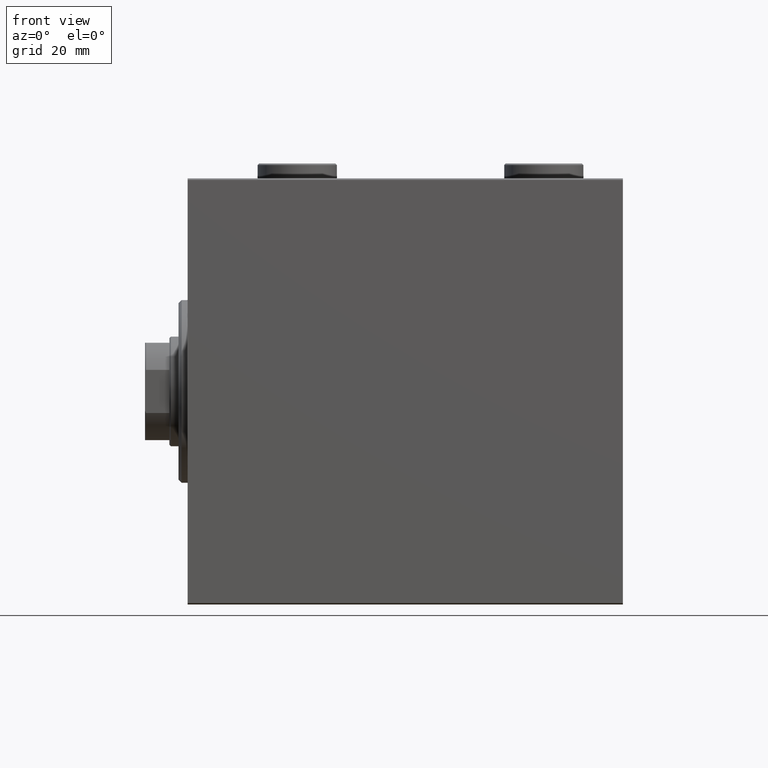
[diagram: clean part render]
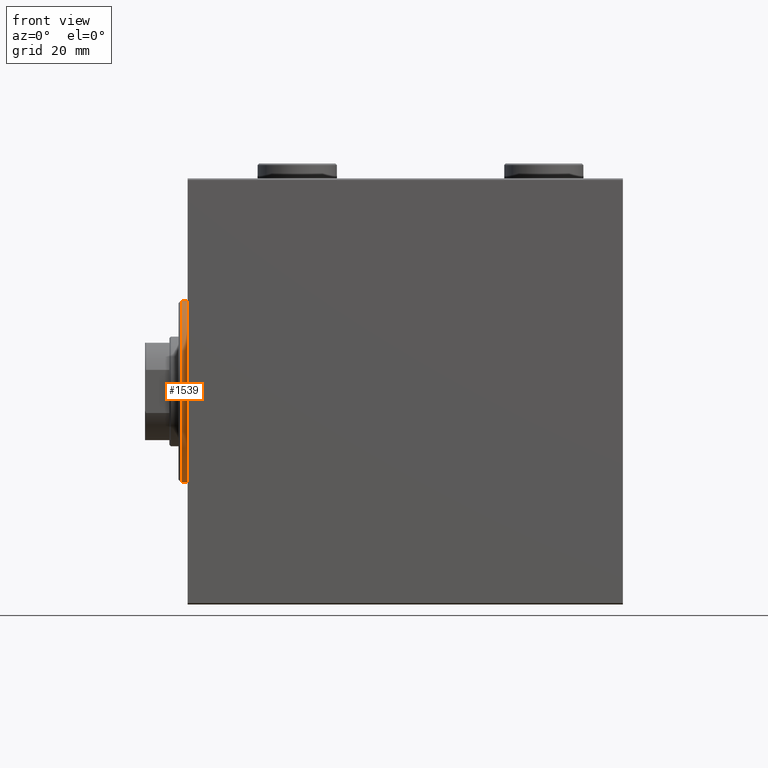
[diagram: same view with one face highlighted and labeled with its STEP entity id]
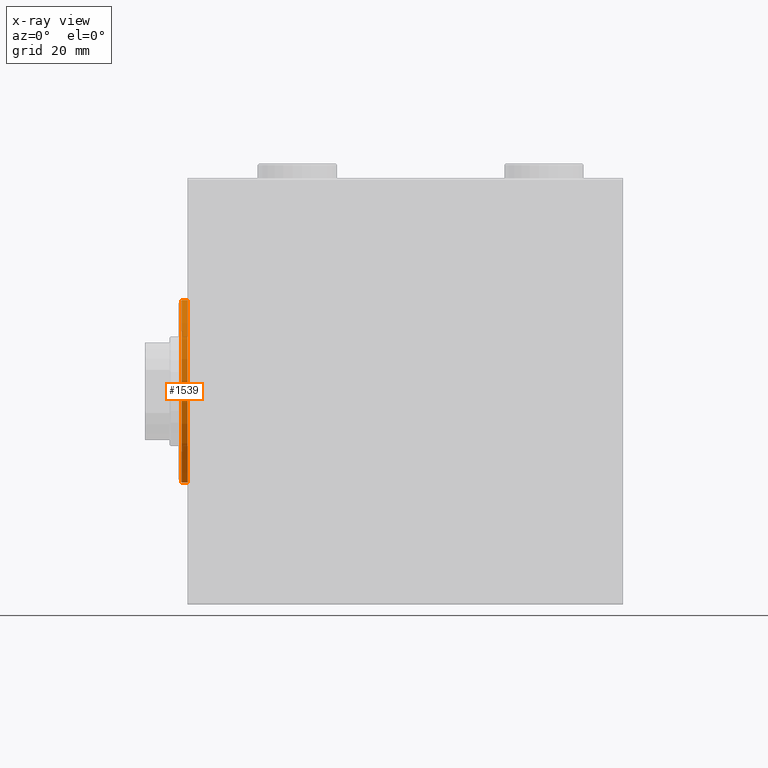
[diagram: x-ray of the same camera — body ghosted, the highlighted face saturated]
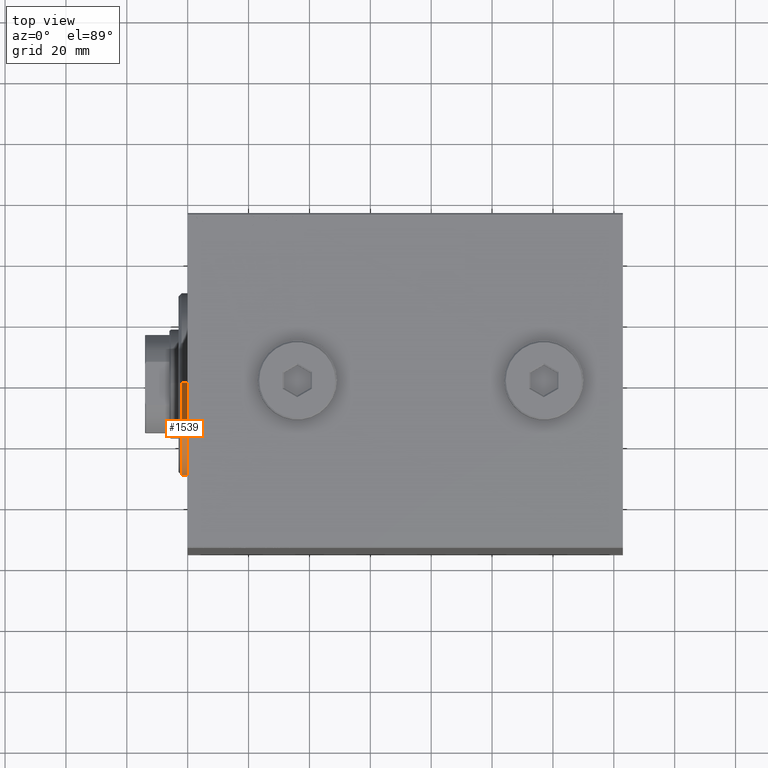
[diagram: same view with one face highlighted and labeled with its STEP entity id]
A machine part, front view. The second image highlights one B-rep face of the part: STEP entity #1539.
The next image is the same camera in x-ray: the body ghosted, the highlighted face saturated — about 0% of this face is hidden behind the body in this view.
A second angle (top view) of the same face is appended — the face is thin or edge-on in the first view.
In plain terms, the highlighted cylindrical surface (partial cylindrical patch) has radius 30 mm, axis along (1, -0, -0).
Its self-contained STEP definition (entity closure, byte-faithful):
#1539 = ADVANCED_FACE ( 'NONE', ( #42181 ), #30632, .T. ) ;
#3245 = CARTESIAN_POINT ( 'NONE',  ( 1.999999999999992228, 0.000000000000000000, 30.00000000000000000 ) ) ;
#3323 = VECTOR ( 'NONE', #32318, 1000.000000000000000 ) ;
#4679 = EDGE_LOOP ( 'NONE', ( #13839, #22411, #24143, #26681 ) ) ;
#5172 = VERTEX_POINT ( 'NONE', #3245 ) ;
#5930 = CARTESIAN_POINT ( 'NONE',  ( 3.000000000000000000, 0.000000000000000000, 0.000000000000000000 ) ) ;
#7484 = VERTEX_POINT ( 'NONE', #30461 ) ;
#9858 = VECTOR ( 'NONE', #12364, 1000.000000000000000 ) ;
#12364 = DIRECTION ( 'NONE',  ( -1.000000000000000000, -0.000000000000000000, -0.000000000000000000 ) ) ;
#13839 = ORIENTED_EDGE ( 'NONE', *, *, #35902, .T. ) ;
#16439 = EDGE_CURVE ( 'NONE', #22426, #42950, #17984, .T. ) ;
#17261 = AXIS2_PLACEMENT_3D ( 'NONE', #30271, #33284, #36772 ) ;
#17775 = LINE ( 'NONE', #17997, #3323 ) ;
#17984 = CIRCLE ( 'NONE', #17261, 30.00000000000000000 ) ;
#17997 = CARTESIAN_POINT ( 'NONE',  ( 3.000000000000000000, 0.000000000000000000, 30.00000000000000000 ) ) ;
#19542 = EDGE_CURVE ( 'NONE', #5172, #42950, #17775, .T. ) ;
#20013 = DIRECTION ( 'NONE',  ( 0.000000000000000000, 0.000000000000000000, 1.000000000000000000 ) ) ;
#21683 = AXIS2_PLACEMENT_3D ( 'NONE', #21958, #44139, #22871 ) ;
#21958 = CARTESIAN_POINT ( 'NONE',  ( 1.999999999999992228, 0.000000000000000000, 0.000000000000000000 ) ) ;
#22411 = ORIENTED_EDGE ( 'NONE', *, *, #35296, .T. ) ;
#22426 = VERTEX_POINT ( 'NONE', #34576 ) ;
#22871 = DIRECTION ( 'NONE',  ( 0.000000000000000000, 0.000000000000000000, -1.000000000000000000 ) ) ;
#24143 = ORIENTED_EDGE ( 'NONE', *, *, #16439, .T. ) ;
#26111 = CARTESIAN_POINT ( 'NONE',  ( 0.000000000000000000, 0.000000000000000000, 30.00000000000000000 ) ) ;
#26681 = ORIENTED_EDGE ( 'NONE', *, *, #19542, .F. ) ;
#30271 = CARTESIAN_POINT ( 'NONE',  ( 0.000000000000000000, 0.000000000000000000, 0.000000000000000000 ) ) ;
#30461 = CARTESIAN_POINT ( 'NONE',  ( 1.999999999999992228, 3.673940397442059178E-15, -30.00000000000000000 ) ) ;
#30632 = CYLINDRICAL_SURFACE ( 'NONE', #44619, 30.00000000000000000 ) ;
#32318 = DIRECTION ( 'NONE',  ( -1.000000000000000000, -0.000000000000000000, -0.000000000000000000 ) ) ;
#33284 = DIRECTION ( 'NONE',  ( 1.000000000000000000, -0.000000000000000000, 0.000000000000000000 ) ) ;
#33844 = LINE ( 'NONE', #39850, #9858 ) ;
#34576 = CARTESIAN_POINT ( 'NONE',  ( 0.000000000000000000, 3.673940397442059178E-15, -30.00000000000000000 ) ) ;
#35296 = EDGE_CURVE ( 'NONE', #7484, #22426, #33844, .T. ) ;
#35902 = EDGE_CURVE ( 'NONE', #5172, #7484, #45314, .T. ) ;
#36772 = DIRECTION ( 'NONE',  ( 0.000000000000000000, 0.000000000000000000, -1.000000000000000000 ) ) ;
#39850 = CARTESIAN_POINT ( 'NONE',  ( 3.000000000000000000, 3.673940397442059178E-15, -30.00000000000000000 ) ) ;
#42181 = FACE_OUTER_BOUND ( 'NONE', #4679, .T. ) ;
#42950 = VERTEX_POINT ( 'NONE', #26111 ) ;
#44139 = DIRECTION ( 'NONE',  ( -1.000000000000000000, 0.000000000000000000, 0.000000000000000000 ) ) ;
#44619 = AXIS2_PLACEMENT_3D ( 'NONE', #5930, #44742, #20013 ) ;
#44742 = DIRECTION ( 'NONE',  ( -1.000000000000000000, -0.000000000000000000, -0.000000000000000000 ) ) ;
#45314 = CIRCLE ( 'NONE', #21683, 30.00000000000000000 ) ;